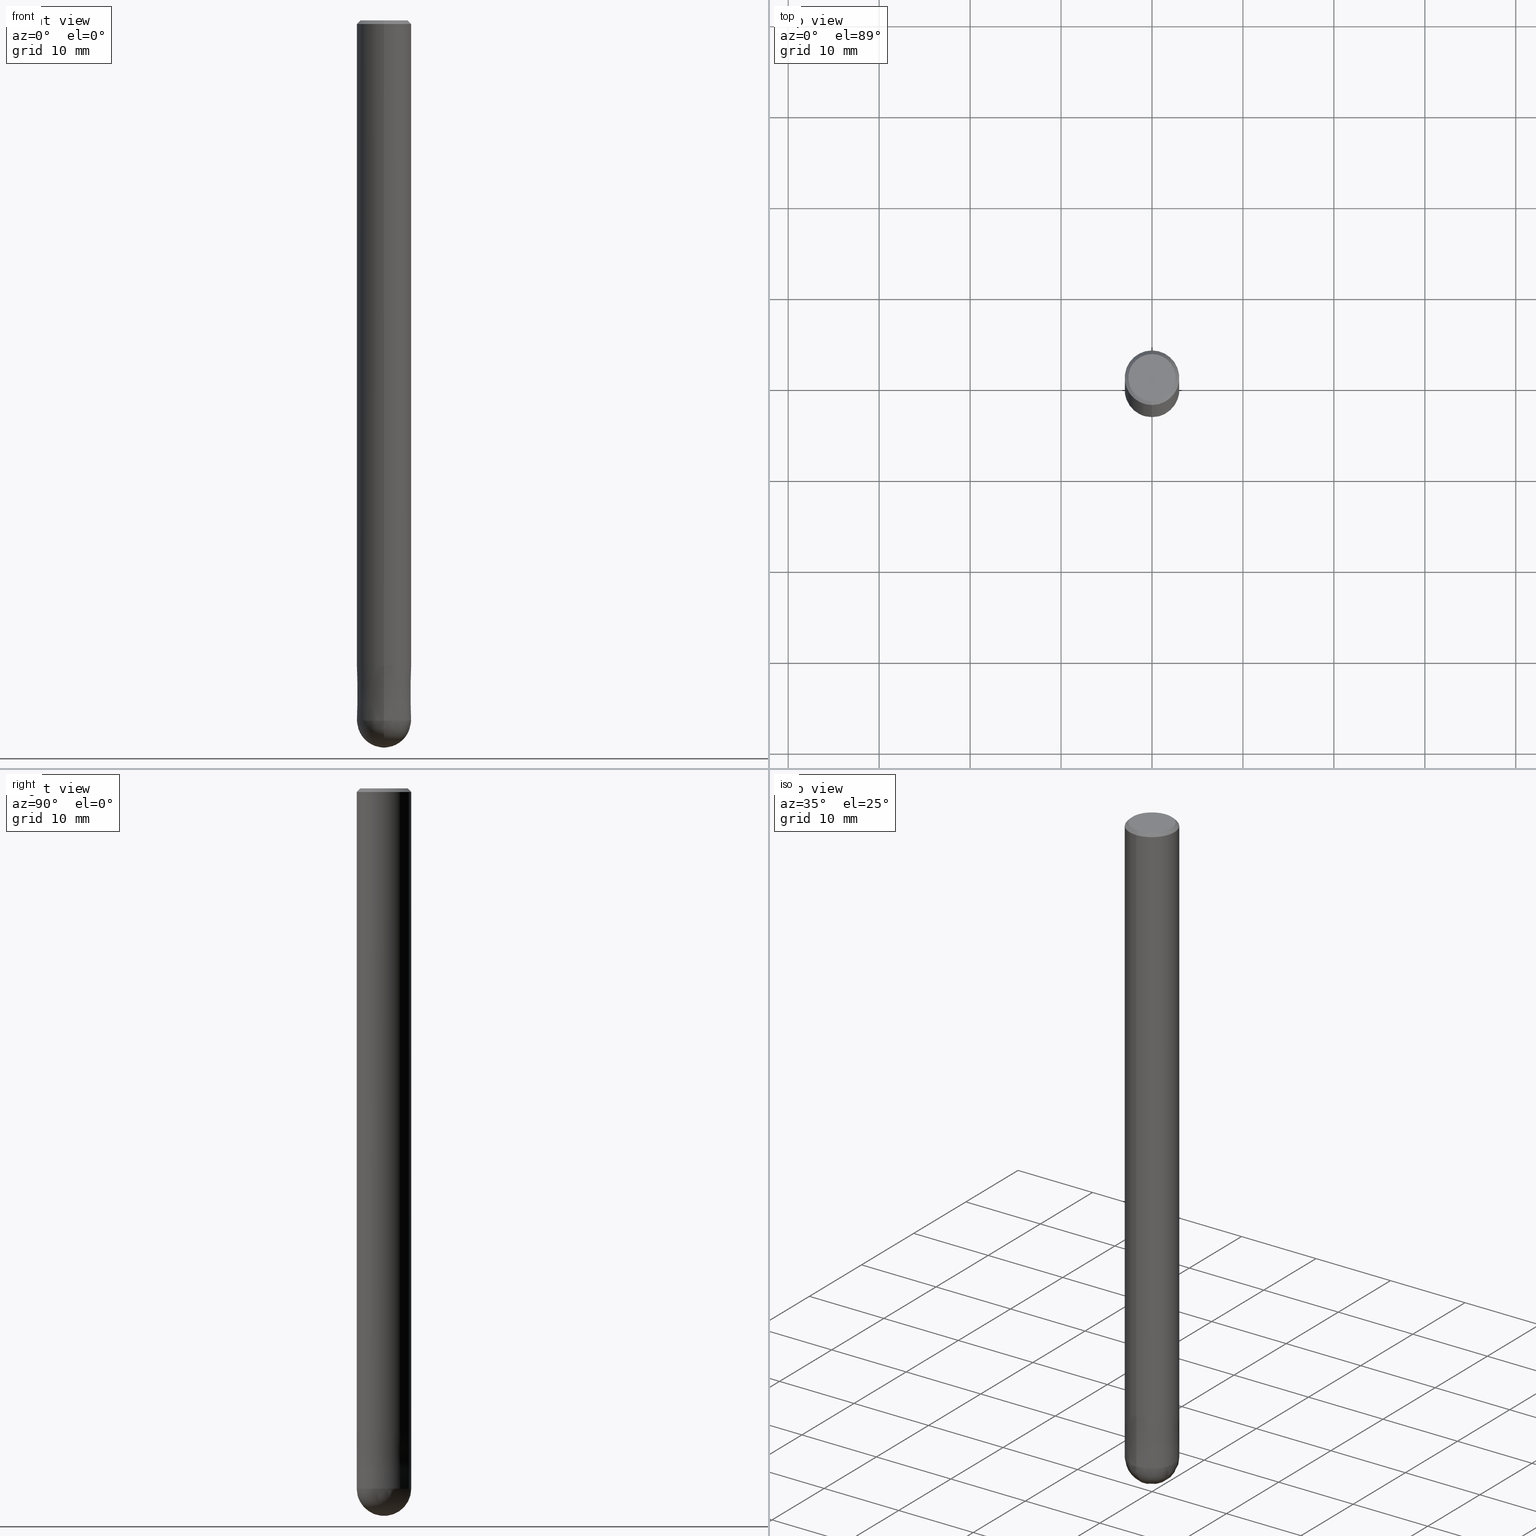
[diagram: canonical four-view strip — front | top / right | iso, engineering-drawing reading convention]
A machine part, canonical four-view strip (front | top / right | iso — engineering-drawing reading convention). The complete STEP part file that produces these views, byte-faithful:
ISO-10303-21;
HEADER;
FILE_DESCRIPTION(('no description'),'unknown implementation level');
FILE_NAME('CFB3060-0900-Huellk.stp','  ',('CIMSOURCE GmbH'),('CADClick - KiM GmbH - www.kimweb.de'),'unknown preprocess','ACIS','unknown authorization');
FILE_SCHEMA(('automotive_design'));
ENDSEC;
DATA;
#1=MECHANICAL_DESIGN_GEOMETRIC_PRESENTATION_REPRESENTATION(' ',(#10,#11,#12,#13,#14,#15,#16,#17,#18,#19,#20,#21,#22,#23,#24,#25,#26,#27,#28,#29,#30,#31,#32,#33,#34,#35,#36,#37,#38,#39,#40,#41,#42,#43,#44,#45,#46,#47),#6);
#2=PRODUCT_DEFINITION_CONTEXT('',#48,'design');
#3=APPLICATION_PROTOCOL_DEFINITION('INTERNATIONAL STANDARD','automotive_design',1994,#48);
#4=PRODUCT_CATEGORY_RELATIONSHIP('NONE','NONE',#49,#50);
#5=SHAPE_DEFINITION_REPRESENTATION(#51,#52);
#6= (GEOMETRIC_REPRESENTATION_CONTEXT(3)GLOBAL_UNCERTAINTY_ASSIGNED_CONTEXT((#55))GLOBAL_UNIT_ASSIGNED_CONTEXT((#57,#58,#59))REPRESENTATION_CONTEXT('NONE','WORKSPACE'));
#10=STYLED_ITEM('',(#61),#62);
#11=STYLED_ITEM('',(#63),#64);
#12=STYLED_ITEM('',(#65),#66);
#13=STYLED_ITEM('',(#67),#68);
#14=STYLED_ITEM('',(#69),#70);
#15=STYLED_ITEM('',(#71),#72);
#16=STYLED_ITEM('',(#73),#74);
#17=STYLED_ITEM('',(#75),#76);
#18=STYLED_ITEM('',(#77),#78);
#19=STYLED_ITEM('',(#79),#80);
#20=STYLED_ITEM('',(#81),#82);
#21=STYLED_ITEM('',(#83),#84);
#22=STYLED_ITEM('',(#85),#86);
#23=STYLED_ITEM('',(#87),#88);
#24=STYLED_ITEM('',(#89),#90);
#25=STYLED_ITEM('',(#91),#92);
#26=STYLED_ITEM('',(#93),#94);
#27=STYLED_ITEM('',(#95),#96);
#28=STYLED_ITEM('',(#97),#98);
#29=STYLED_ITEM('',(#99),#100);
#30=STYLED_ITEM('',(#101),#102);
#31=STYLED_ITEM('',(#103),#104);
#32=STYLED_ITEM('',(#105),#106);
#33=STYLED_ITEM('',(#107),#108);
#34=STYLED_ITEM('',(#109),#110);
#35=STYLED_ITEM('',(#111),#112);
#36=STYLED_ITEM('',(#113),#114);
#37=STYLED_ITEM('',(#115),#116);
#38=STYLED_ITEM('',(#117),#118);
#39=STYLED_ITEM('',(#119),#120);
#40=STYLED_ITEM('',(#121),#122);
#41=STYLED_ITEM('',(#123),#124);
#42=STYLED_ITEM('',(#125),#126);
#43=STYLED_ITEM('',(#127),#128);
#44=STYLED_ITEM('',(#129),#130);
#45=STYLED_ITEM('',(#131),#132);
#46=STYLED_ITEM('',(#133),#134);
#47=STYLED_ITEM('',(#135),#136);
#48=APPLICATION_CONTEXT(' ');
#49=PRODUCT_CATEGORY('part','NONE');
#50=PRODUCT_RELATED_PRODUCT_CATEGORY('detail',' ',(#137));
#51=PRODUCT_DEFINITION_SHAPE('NONE','NONE',#138);
#52=ADVANCED_BREP_SHAPE_REPRESENTATION('1',(#132,#139),#6);
#55=UNCERTAINTY_MEASURE_WITH_UNIT(LENGTH_MEASURE(1.0E-006),#57,'','');
#57= (CONVERSION_BASED_UNIT('MILLIMETRE',#142)LENGTH_UNIT()NAMED_UNIT(#145));
#58= (NAMED_UNIT(#147)PLANE_ANGLE_UNIT()SI_UNIT($,.RADIAN.));
#59= (NAMED_UNIT(#147)SOLID_ANGLE_UNIT()SI_UNIT($,.STERADIAN.));
#61=PRESENTATION_STYLE_ASSIGNMENT((#153));
#62=VERTEX_POINT('',#154);
#63=PRESENTATION_STYLE_ASSIGNMENT((#155));
#64=VERTEX_POINT('',#156);
#65=PRESENTATION_STYLE_ASSIGNMENT((#157));
#66=VERTEX_POINT('',#158);
#67=PRESENTATION_STYLE_ASSIGNMENT((#159));
#68=VERTEX_POINT('',#160);
#69=PRESENTATION_STYLE_ASSIGNMENT((#161));
#70=VERTEX_POINT('',#162);
#71=PRESENTATION_STYLE_ASSIGNMENT((#163));
#72=EDGE_CURVE('',#128,#68,#164,.T.);
#73=PRESENTATION_STYLE_ASSIGNMENT((#165));
#74=ADVANCED_FACE('',(#166),#167,.T.);
#75=PRESENTATION_STYLE_ASSIGNMENT((#168));
#76=EDGE_CURVE('',#136,#64,#169,.T.);
#77=PRESENTATION_STYLE_ASSIGNMENT((#170));
#78=EDGE_CURVE('',#70,#120,#171,.T.);
#79=PRESENTATION_STYLE_ASSIGNMENT((#172));
#80=ADVANCED_FACE('',(#173),#174,.T.);
#81=PRESENTATION_STYLE_ASSIGNMENT((#175));
#82=ADVANCED_FACE('',(#176),#177,.T.);
#83=PRESENTATION_STYLE_ASSIGNMENT((#178));
#84=VERTEX_POINT('',#179);
#85=PRESENTATION_STYLE_ASSIGNMENT((#180));
#86=EDGE_CURVE('',#66,#62,#181,.T.);
#87=PRESENTATION_STYLE_ASSIGNMENT((#182));
#88=ADVANCED_FACE('',(#183),#184,.T.);
#89=PRESENTATION_STYLE_ASSIGNMENT((#185));
#90=EDGE_CURVE('',#68,#128,#186,.T.);
#91=PRESENTATION_STYLE_ASSIGNMENT((#187));
#92=EDGE_CURVE('',#120,#70,#188,.T.);
#93=PRESENTATION_STYLE_ASSIGNMENT((#189));
#94=EDGE_CURVE('',#68,#62,#190,.T.);
#95=PRESENTATION_STYLE_ASSIGNMENT((#191));
#96=EDGE_CURVE('',#84,#124,#192,.T.);
#97=PRESENTATION_STYLE_ASSIGNMENT((#193));
#98=ADVANCED_FACE('',(#194),#195,.T.);
#99=PRESENTATION_STYLE_ASSIGNMENT((#196));
#100=ADVANCED_FACE('',(#197),#198,.T.);
#101=PRESENTATION_STYLE_ASSIGNMENT((#199));
#102=EDGE_CURVE('',#64,#84,#200,.T.);
#103=PRESENTATION_STYLE_ASSIGNMENT((#201));
#104=EDGE_CURVE('',#124,#84,#202,.T.);
#105=PRESENTATION_STYLE_ASSIGNMENT((#203));
#106=ADVANCED_FACE('',(#204),#205,.T.);
#107=PRESENTATION_STYLE_ASSIGNMENT((#206));
#108=EDGE_CURVE('',#120,#68,#207,.T.);
#109=PRESENTATION_STYLE_ASSIGNMENT((#208));
#110=ADVANCED_FACE('',(#209,#210),#211,.T.);
#111=PRESENTATION_STYLE_ASSIGNMENT((#212));
#112=EDGE_CURVE('',#64,#136,#213,.T.);
#113=PRESENTATION_STYLE_ASSIGNMENT((#214));
#114=EDGE_CURVE('',#66,#128,#215,.T.);
#115=PRESENTATION_STYLE_ASSIGNMENT((#216));
#116=ADVANCED_FACE('',(#217),#218,.T.);
#117=PRESENTATION_STYLE_ASSIGNMENT((#219));
#118=EDGE_CURVE('',#124,#84,#220,.T.);
#119=PRESENTATION_STYLE_ASSIGNMENT((#221));
#120=VERTEX_POINT('',#222);
#121=PRESENTATION_STYLE_ASSIGNMENT((#223));
#122=ADVANCED_FACE('',(#224),#225,.T.);
#123=PRESENTATION_STYLE_ASSIGNMENT((#226));
#124=VERTEX_POINT('',#227);
#125=PRESENTATION_STYLE_ASSIGNMENT((#228));
#126=EDGE_CURVE('',#128,#70,#229,.T.);
#127=PRESENTATION_STYLE_ASSIGNMENT((#230));
#128=VERTEX_POINT('',#231);
#129=PRESENTATION_STYLE_ASSIGNMENT((#232));
#130=EDGE_CURVE('',#62,#66,#233,.T.);
#131=PRESENTATION_STYLE_ASSIGNMENT((#234));
#132=MANIFOLD_SOLID_BREP('1',#235);
#133=PRESENTATION_STYLE_ASSIGNMENT((#236));
#134=EDGE_CURVE('',#124,#136,#237,.T.);
#135=PRESENTATION_STYLE_ASSIGNMENT((#238));
#136=VERTEX_POINT('',#239);
#137=PRODUCT('1','1','PART-1-DESC',(#240));
#138=PRODUCT_DEFINITION('NONE','NONE',#241,#2);
#139=AXIS2_PLACEMENT_3D('',#242,#243,#244);
#142=LENGTH_MEASURE_WITH_UNIT(LENGTH_MEASURE(1.0),#245);
#145=DIMENSIONAL_EXPONENTS(1.0,0.0,0.0,0.0,0.0,0.0,0.0);
#147=DIMENSIONAL_EXPONENTS(0.0,0.0,0.0,0.0,0.0,0.0,0.0);
#153=POINT_STYLE(' ',#246,POSITIVE_LENGTH_MEASURE(1.0E-006),#247);
#154=CARTESIAN_POINT('',(0.0,3.0,-71.0));
#155=POINT_STYLE(' ',#248,POSITIVE_LENGTH_MEASURE(1.0E-006),#249);
#156=CARTESIAN_POINT('',(0.0,2.9999,-71.0));
#157=POINT_STYLE(' ',#250,POSITIVE_LENGTH_MEASURE(1.0E-006),#251);
#158=CARTESIAN_POINT('',(3.67381906146713E-016,-3.0,-71.0));
#159=POINT_STYLE(' ',#252,POSITIVE_LENGTH_MEASURE(1.0E-006),#253);
#160=CARTESIAN_POINT('',(0.0,3.0,-0.400000000000006));
#161=POINT_STYLE(' ',#254,POSITIVE_LENGTH_MEASURE(1.0E-006),#255);
#162=CARTESIAN_POINT('',(3.18397651993818E-016,-2.6,0.0));
#163=CURVE_STYLE('',#256,POSITIVE_LENGTH_MEASURE(1.0E-006),#257);
#164=CIRCLE('',#258,3.0);
#165=SURFACE_STYLE_USAGE(.BOTH.,#259);
#166=FACE_OUTER_BOUND('',#260,.T.);
#167=PLANE('',#261);
#168=CURVE_STYLE('',#262,POSITIVE_LENGTH_MEASURE(1.0E-006),#263);
#169=CIRCLE('',#264,2.9999);
#170=CURVE_STYLE('',#265,POSITIVE_LENGTH_MEASURE(1.0E-006),#266);
#171=CIRCLE('',#267,2.6);
#172=SURFACE_STYLE_USAGE(.BOTH.,#268);
#173=FACE_OUTER_BOUND('',#269,.T.);
#174=CONICAL_SURFACE('',#270,2.99995,1.66666666652326E-005);
#175=SURFACE_STYLE_USAGE(.BOTH.,#271);
#176=FACE_OUTER_BOUND('',#272,.T.);
#177=CYLINDRICAL_SURFACE('',#273,3.0);
#178=POINT_STYLE(' ',#274,POSITIVE_LENGTH_MEASURE(1.0E-006),#275);
#179=CARTESIAN_POINT('',(0.0,3.0,-77.0));
#180=CURVE_STYLE('',#276,POSITIVE_LENGTH_MEASURE(1.0E-006),#277);
#181=CIRCLE('',#278,3.0);
#182=SURFACE_STYLE_USAGE(.BOTH.,#279);
#183=FACE_OUTER_BOUND('',#280,.T.);
#184=CONICAL_SURFACE('',#281,2.8,0.785398163397441);
#185=CURVE_STYLE('',#282,POSITIVE_LENGTH_MEASURE(1.0E-006),#283);
#186=CIRCLE('',#284,3.0);
#187=CURVE_STYLE('',#285,POSITIVE_LENGTH_MEASURE(1.0E-006),#286);
#188=CIRCLE('',#287,2.6);
#189=CURVE_STYLE('',#288,POSITIVE_LENGTH_MEASURE(1.0E-006),#289);
#190=LINE('',#290,#291);
#191=CURVE_STYLE('',#292,POSITIVE_LENGTH_MEASURE(1.0E-006),#293);
#192=CIRCLE('',#294,3.0);
#193=SURFACE_STYLE_USAGE(.BOTH.,#295);
#194=FACE_OUTER_BOUND('',#296,.T.);
#195=CONICAL_SURFACE('',#297,2.8,0.785398163397441);
#196=SURFACE_STYLE_USAGE(.BOTH.,#298);
#197=FACE_OUTER_BOUND('',#299,.T.);
#198=SPHERICAL_SURFACE('',#300,3.00000000000001);
#199=CURVE_STYLE('',#301,POSITIVE_LENGTH_MEASURE(1.0E-006),#302);
#200=LINE('',#303,#304);
#201=CURVE_STYLE('',#305,POSITIVE_LENGTH_MEASURE(1.0E-006),#306);
#202=CIRCLE('',#307,3.00000000000001);
#203=SURFACE_STYLE_USAGE(.BOTH.,#308);
#204=FACE_OUTER_BOUND('',#309,.T.);
#205=CONICAL_SURFACE('',#310,2.99995,1.66666666652326E-005);
#206=CURVE_STYLE('',#311,POSITIVE_LENGTH_MEASURE(1.0E-006),#312);
#207=LINE('',#313,#314);
#208=SURFACE_STYLE_USAGE(.BOTH.,#315);
#209=FACE_OUTER_BOUND('',#316,.T.);
#210=FACE_BOUND('',#317,.T.);
#211=PLANE('',#318);
#212=CURVE_STYLE('',#319,POSITIVE_LENGTH_MEASURE(1.0E-006),#320);
#213=CIRCLE('',#321,2.9999);
#214=CURVE_STYLE('',#322,POSITIVE_LENGTH_MEASURE(1.0E-006),#323);
#215=LINE('',#324,#325);
#216=SURFACE_STYLE_USAGE(.BOTH.,#326);
#217=FACE_OUTER_BOUND('',#327,.T.);
#218=SPHERICAL_SURFACE('',#328,3.00000000000001);
#219=CURVE_STYLE('',#329,POSITIVE_LENGTH_MEASURE(1.0E-006),#330);
#220=CIRCLE('',#331,3.0);
#221=POINT_STYLE(' ',#332,POSITIVE_LENGTH_MEASURE(1.0E-006),#333);
#222=CARTESIAN_POINT('',(0.0,2.6,0.0));
#223=SURFACE_STYLE_USAGE(.BOTH.,#334);
#224=FACE_OUTER_BOUND('',#335,.T.);
#225=CYLINDRICAL_SURFACE('',#336,3.0);
#226=POINT_STYLE(' ',#337,POSITIVE_LENGTH_MEASURE(1.0E-006),#338);
#227=CARTESIAN_POINT('',(3.67381906146713E-016,-3.0,-77.0));
#228=CURVE_STYLE('',#339,POSITIVE_LENGTH_MEASURE(1.0E-006),#340);
#229=LINE('',#341,#342);
#230=POINT_STYLE(' ',#343,POSITIVE_LENGTH_MEASURE(1.0E-006),#344);
#231=CARTESIAN_POINT('',(3.67381906146713E-016,-3.0,-0.400000000000006));
#232=CURVE_STYLE('',#345,POSITIVE_LENGTH_MEASURE(1.0E-006),#346);
#233=CIRCLE('',#347,3.0);
#234=SURFACE_STYLE_USAGE(.BOTH.,#348);
#235=CLOSED_SHELL('',(#100,#80,#122,#98,#110,#74,#88,#82,#106,#116));
#236=CURVE_STYLE('',#349,POSITIVE_LENGTH_MEASURE(1.0E-006),#350);
#237=LINE('',#351,#352);
#238=POINT_STYLE(' ',#353,POSITIVE_LENGTH_MEASURE(1.0E-006),#354);
#239=CARTESIAN_POINT('',(3.67369660083175E-016,-2.9999,-71.0));
#240=PRODUCT_CONTEXT('',#48,'mechanical');
#241=PRODUCT_DEFINITION_FORMATION_WITH_SPECIFIED_SOURCE(' ','NONE',#137,.NOT_KNOWN.);
#242=CARTESIAN_POINT('',(0.0,0.0,0.0));
#243=DIRECTION('',(0.0,0.0,1.0));
#244=DIRECTION('',(1.0,0.0,0.0));
#245= (NAMED_UNIT(#145)LENGTH_UNIT()SI_UNIT(.MILLI.,.METRE.));
#246=PRE_DEFINED_MARKER('');
#247=COLOUR_RGB('',0.498039215803146,0.498039215803146,0.498039215803146);
#248=PRE_DEFINED_MARKER('');
#249=COLOUR_RGB('',0.800000011920929,0.800000011920929,0.800000011920929);
#250=PRE_DEFINED_MARKER('');
#251=COLOUR_RGB('',0.498039215803146,0.498039215803146,0.498039215803146);
#252=PRE_DEFINED_MARKER('');
#253=COLOUR_RGB('',0.498039215803146,0.498039215803146,0.498039215803146);
#254=PRE_DEFINED_MARKER('');
#255=COLOUR_RGB('',0.498039215803146,0.498039215803146,0.498039215803146);
#256=DRAUGHTING_PRE_DEFINED_CURVE_FONT('continuous');
#257=COLOUR_RGB('',0.498039215803146,0.498039215803146,0.498039215803146);
#258=AXIS2_PLACEMENT_3D('',#356,#357,#358);
#259=SURFACE_SIDE_STYLE('',(#359));
#260=EDGE_LOOP('',(#360,#361));
#261=AXIS2_PLACEMENT_3D('',#362,#363,#364);
#262=DRAUGHTING_PRE_DEFINED_CURVE_FONT('continuous');
#263=COLOUR_RGB('',0.800000011920929,0.800000011920929,0.800000011920929);
#264=AXIS2_PLACEMENT_3D('',#365,#366,#367);
#265=DRAUGHTING_PRE_DEFINED_CURVE_FONT('continuous');
#266=COLOUR_RGB('',0.498039215803146,0.498039215803146,0.498039215803146);
#267=AXIS2_PLACEMENT_3D('',#368,#369,#370);
#268=SURFACE_SIDE_STYLE('',(#371));
#269=EDGE_LOOP('',(#372,#373,#374,#375));
#270=AXIS2_PLACEMENT_3D('',#376,#377,#378);
#271=SURFACE_SIDE_STYLE('',(#379));
#272=EDGE_LOOP('',(#380,#381,#382,#383));
#273=AXIS2_PLACEMENT_3D('',#384,#385,#386);
#274=PRE_DEFINED_MARKER('');
#275=COLOUR_RGB('',0.800000011920929,0.800000011920929,0.800000011920929);
#276=DRAUGHTING_PRE_DEFINED_CURVE_FONT('continuous');
#277=COLOUR_RGB('',0.498039215803146,0.498039215803146,0.498039215803146);
#278=AXIS2_PLACEMENT_3D('',#387,#388,#389);
#279=SURFACE_SIDE_STYLE('',(#390));
#280=EDGE_LOOP('',(#391,#392,#393,#394));
#281=AXIS2_PLACEMENT_3D('',#395,#396,#397);
#282=DRAUGHTING_PRE_DEFINED_CURVE_FONT('continuous');
#283=COLOUR_RGB('',0.498039215803146,0.498039215803146,0.498039215803146);
#284=AXIS2_PLACEMENT_3D('',#398,#399,#400);
#285=DRAUGHTING_PRE_DEFINED_CURVE_FONT('continuous');
#286=COLOUR_RGB('',0.498039215803146,0.498039215803146,0.498039215803146);
#287=AXIS2_PLACEMENT_3D('',#401,#402,#403);
#288=DRAUGHTING_PRE_DEFINED_CURVE_FONT('continuous');
#289=COLOUR_RGB('',0.498039215803146,0.498039215803146,0.498039215803146);
#290=CARTESIAN_POINT('',(-3.67381906146713E-016,3.0,-35.7));
#291=VECTOR('',#404,1.0);
#292=DRAUGHTING_PRE_DEFINED_CURVE_FONT('continuous');
#293=COLOUR_RGB('',0.800000011920929,0.800000011920929,0.800000011920929);
#294=AXIS2_PLACEMENT_3D('',#405,#406,#407);
#295=SURFACE_SIDE_STYLE('',(#408));
#296=EDGE_LOOP('',(#409,#410,#411,#412));
#297=AXIS2_PLACEMENT_3D('',#413,#414,#415);
#298=SURFACE_SIDE_STYLE('',(#416));
#299=EDGE_LOOP('',(#417,#418));
#300=AXIS2_PLACEMENT_3D('',#419,#420,#421);
#301=DRAUGHTING_PRE_DEFINED_CURVE_FONT('continuous');
#302=COLOUR_RGB('',0.800000011920929,0.800000011920929,0.800000011920929);
#303=CARTESIAN_POINT('',(-3.67375783114944E-016,2.99995,-74.0));
#304=VECTOR('',#422,1.0);
#305=DRAUGHTING_PRE_DEFINED_CURVE_FONT('continuous');
#306=COLOUR_RGB('',0.800000011920929,0.800000011920929,0.800000011920929);
#307=AXIS2_PLACEMENT_3D('',#423,#424,#425);
#308=SURFACE_SIDE_STYLE('',(#426));
#309=EDGE_LOOP('',(#427,#428,#429,#430));
#310=AXIS2_PLACEMENT_3D('',#431,#432,#433);
#311=DRAUGHTING_PRE_DEFINED_CURVE_FONT('continuous');
#312=COLOUR_RGB('',0.498039215803146,0.498039215803146,0.498039215803146);
#313=CARTESIAN_POINT('',(-3.42889779070266E-016,2.8,-0.200000000000003));
#314=VECTOR('',#434,1.0);
#315=SURFACE_SIDE_STYLE('',(#435));
#316=EDGE_LOOP('',(#436,#437));
#317=EDGE_LOOP('',(#438,#439));
#318=AXIS2_PLACEMENT_3D('',#440,#441,#442);
#319=DRAUGHTING_PRE_DEFINED_CURVE_FONT('continuous');
#320=COLOUR_RGB('',0.800000011920929,0.800000011920929,0.800000011920929);
#321=AXIS2_PLACEMENT_3D('',#443,#444,#445);
#322=DRAUGHTING_PRE_DEFINED_CURVE_FONT('continuous');
#323=COLOUR_RGB('',0.498039215803146,0.498039215803146,0.498039215803146);
#324=CARTESIAN_POINT('',(3.67381906146713E-016,-3.0,-35.7));
#325=VECTOR('',#446,1.0);
#326=SURFACE_SIDE_STYLE('',(#447));
#327=EDGE_LOOP('',(#448,#449));
#328=AXIS2_PLACEMENT_3D('',#450,#451,#452);
#329=DRAUGHTING_PRE_DEFINED_CURVE_FONT('continuous');
#330=COLOUR_RGB('',0.800000011920929,0.800000011920929,0.800000011920929);
#331=AXIS2_PLACEMENT_3D('',#453,#454,#455);
#332=PRE_DEFINED_MARKER('');
#333=COLOUR_RGB('',0.498039215803146,0.498039215803146,0.498039215803146);
#334=SURFACE_SIDE_STYLE('',(#456));
#335=EDGE_LOOP('',(#457,#458,#459,#460));
#336=AXIS2_PLACEMENT_3D('',#461,#462,#463);
#337=PRE_DEFINED_MARKER('');
#338=COLOUR_RGB('',0.800000011920929,0.800000011920929,0.800000011920929);
#339=DRAUGHTING_PRE_DEFINED_CURVE_FONT('continuous');
#340=COLOUR_RGB('',0.498039215803146,0.498039215803146,0.498039215803146);
#341=CARTESIAN_POINT('',(3.42889779070266E-016,-2.8,-0.200000000000003));
#342=VECTOR('',#464,1.0);
#343=PRE_DEFINED_MARKER('');
#344=COLOUR_RGB('',0.498039215803146,0.498039215803146,0.498039215803146);
#345=DRAUGHTING_PRE_DEFINED_CURVE_FONT('continuous');
#346=COLOUR_RGB('',0.498039215803146,0.498039215803146,0.498039215803146);
#347=AXIS2_PLACEMENT_3D('',#465,#466,#467);
#348=SURFACE_SIDE_STYLE('',(#468));
#349=DRAUGHTING_PRE_DEFINED_CURVE_FONT('continuous');
#350=COLOUR_RGB('',0.800000011920929,0.800000011920929,0.800000011920929);
#351=CARTESIAN_POINT('',(3.67375783114944E-016,-2.99995,-74.0));
#352=VECTOR('',#469,1.0);
#353=PRE_DEFINED_MARKER('');
#354=COLOUR_RGB('',0.800000011920929,0.800000011920929,0.800000011920929);
#356=CARTESIAN_POINT('',(0.0,0.0,-0.400000000000006));
#357=DIRECTION('',(0.0,0.0,-1.0));
#358=DIRECTION('',(0.0,1.0,0.0));
#359=SURFACE_STYLE_FILL_AREA(#470);
#360=ORIENTED_EDGE('',*,*,#92,.F.);
#361=ORIENTED_EDGE('',*,*,#78,.F.);
#362=CARTESIAN_POINT('',(0.0,1.3,0.0));
#363=DIRECTION('',(-0.0,0.0,1.0));
#364=DIRECTION('',(0.0,-1.0,0.0));
#365=CARTESIAN_POINT('',(0.0,0.0,-71.0));
#366=DIRECTION('',(0.0,0.0,-1.0));
#367=DIRECTION('',(0.0,1.0,0.0));
#368=CARTESIAN_POINT('',(0.0,0.0,0.0));
#369=DIRECTION('',(0.0,0.0,-1.0));
#370=DIRECTION('',(0.0,1.0,0.0));
#371=SURFACE_STYLE_FILL_AREA(#471);
#372=ORIENTED_EDGE('',*,*,#102,.F.);
#373=ORIENTED_EDGE('',*,*,#112,.T.);
#374=ORIENTED_EDGE('',*,*,#134,.F.);
#375=ORIENTED_EDGE('',*,*,#96,.F.);
#376=CARTESIAN_POINT('',(0.0,0.0,-74.0));
#377=DIRECTION('',(0.0,-0.0,-1.0));
#378=DIRECTION('',(0.0,1.0,0.0));
#379=SURFACE_STYLE_FILL_AREA(#472);
#380=ORIENTED_EDGE('',*,*,#94,.T.);
#381=ORIENTED_EDGE('',*,*,#86,.F.);
#382=ORIENTED_EDGE('',*,*,#114,.T.);
#383=ORIENTED_EDGE('',*,*,#72,.T.);
#384=CARTESIAN_POINT('',(0.0,0.0,-35.7));
#385=DIRECTION('',(-0.0,-0.0,1.0));
#386=DIRECTION('',(0.0,1.0,0.0));
#387=CARTESIAN_POINT('',(0.0,0.0,-71.0));
#388=DIRECTION('',(0.0,0.0,-1.0));
#389=DIRECTION('',(0.0,1.0,0.0));
#390=SURFACE_STYLE_FILL_AREA(#473);
#391=ORIENTED_EDGE('',*,*,#108,.T.);
#392=ORIENTED_EDGE('',*,*,#72,.F.);
#393=ORIENTED_EDGE('',*,*,#126,.T.);
#394=ORIENTED_EDGE('',*,*,#78,.T.);
#395=CARTESIAN_POINT('',(0.0,0.0,-0.200000000000003));
#396=DIRECTION('',(0.0,-0.0,-1.0));
#397=DIRECTION('',(0.0,1.0,0.0));
#398=CARTESIAN_POINT('',(0.0,0.0,-0.400000000000006));
#399=DIRECTION('',(0.0,0.0,-1.0));
#400=DIRECTION('',(0.0,1.0,0.0));
#401=CARTESIAN_POINT('',(0.0,0.0,0.0));
#402=DIRECTION('',(0.0,0.0,-1.0));
#403=DIRECTION('',(0.0,1.0,0.0));
#404=DIRECTION('',(0.0,0.0,-1.0));
#405=CARTESIAN_POINT('',(0.0,0.0,-77.0));
#406=DIRECTION('',(0.0,0.0,-1.0));
#407=DIRECTION('',(0.0,1.0,0.0));
#408=SURFACE_STYLE_FILL_AREA(#474);
#409=ORIENTED_EDGE('',*,*,#108,.F.);
#410=ORIENTED_EDGE('',*,*,#92,.T.);
#411=ORIENTED_EDGE('',*,*,#126,.F.);
#412=ORIENTED_EDGE('',*,*,#90,.F.);
#413=CARTESIAN_POINT('',(0.0,0.0,-0.200000000000003));
#414=DIRECTION('',(0.0,-0.0,-1.0));
#415=DIRECTION('',(0.0,1.0,0.0));
#416=SURFACE_STYLE_FILL_AREA(#475);
#417=ORIENTED_EDGE('',*,*,#104,.F.);
#418=ORIENTED_EDGE('',*,*,#118,.T.);
#419=CARTESIAN_POINT('',(0.0,0.0,-77.0));
#420=DIRECTION('',(0.0,1.0,0.0));
#421=DIRECTION('',(0.0,0.0,-1.0));
#422=DIRECTION('',(-2.04101058943386E-021,1.6666666664461E-005,-0.999999999861111));
#423=CARTESIAN_POINT('',(0.0,0.0,-77.0));
#424=DIRECTION('',(1.0,0.0,1.22460635382238E-016));
#425=DIRECTION('',(-1.22460635382238E-016,0.0,1.0));
#426=SURFACE_STYLE_FILL_AREA(#476);
#427=ORIENTED_EDGE('',*,*,#102,.T.);
#428=ORIENTED_EDGE('',*,*,#118,.F.);
#429=ORIENTED_EDGE('',*,*,#134,.T.);
#430=ORIENTED_EDGE('',*,*,#76,.T.);
#431=CARTESIAN_POINT('',(0.0,0.0,-74.0));
#432=DIRECTION('',(0.0,-0.0,-1.0));
#433=DIRECTION('',(0.0,1.0,0.0));
#434=DIRECTION('',(-8.65927457071929E-017,0.707106781186542,-0.707106781186553));
#435=SURFACE_STYLE_FILL_AREA(#477);
#436=ORIENTED_EDGE('',*,*,#130,.T.);
#437=ORIENTED_EDGE('',*,*,#86,.T.);
#438=ORIENTED_EDGE('',*,*,#112,.F.);
#439=ORIENTED_EDGE('',*,*,#76,.F.);
#440=CARTESIAN_POINT('',(0.0,1.5,-71.0));
#441=DIRECTION('',(0.0,0.0,-1.0));
#442=DIRECTION('',(0.0,1.0,0.0));
#443=CARTESIAN_POINT('',(0.0,0.0,-71.0));
#444=DIRECTION('',(0.0,0.0,-1.0));
#445=DIRECTION('',(0.0,1.0,0.0));
#446=DIRECTION('',(-0.0,-0.0,1.0));
#447=SURFACE_STYLE_FILL_AREA(#478);
#448=ORIENTED_EDGE('',*,*,#104,.T.);
#449=ORIENTED_EDGE('',*,*,#96,.T.);
#450=CARTESIAN_POINT('',(0.0,0.0,-77.0));
#451=DIRECTION('',(0.0,1.0,0.0));
#452=DIRECTION('',(0.0,0.0,-1.0));
#453=CARTESIAN_POINT('',(0.0,0.0,-77.0));
#454=DIRECTION('',(0.0,0.0,-1.0));
#455=DIRECTION('',(0.0,1.0,0.0));
#456=SURFACE_STYLE_FILL_AREA(#479);
#457=ORIENTED_EDGE('',*,*,#94,.F.);
#458=ORIENTED_EDGE('',*,*,#90,.T.);
#459=ORIENTED_EDGE('',*,*,#114,.F.);
#460=ORIENTED_EDGE('',*,*,#130,.F.);
#461=CARTESIAN_POINT('',(0.0,0.0,-35.7));
#462=DIRECTION('',(-0.0,-0.0,1.0));
#463=DIRECTION('',(0.0,1.0,0.0));
#464=DIRECTION('',(-8.65927457071929E-017,0.707106781186542,0.707106781186553));
#465=CARTESIAN_POINT('',(0.0,0.0,-71.0));
#466=DIRECTION('',(0.0,0.0,-1.0));
#467=DIRECTION('',(0.0,1.0,0.0));
#468=SURFACE_STYLE_FILL_AREA(#480);
#469=DIRECTION('',(-2.04101058943386E-021,1.6666666664461E-005,0.999999999861111));
#470=FILL_AREA_STYLE('',(#481));
#471=FILL_AREA_STYLE('',(#482));
#472=FILL_AREA_STYLE('',(#483));
#473=FILL_AREA_STYLE('',(#484));
#474=FILL_AREA_STYLE('',(#485));
#475=FILL_AREA_STYLE('',(#486));
#476=FILL_AREA_STYLE('',(#487));
#477=FILL_AREA_STYLE('',(#488));
#478=FILL_AREA_STYLE('',(#489));
#479=FILL_AREA_STYLE('',(#490));
#480=FILL_AREA_STYLE('',(#491));
#481=FILL_AREA_STYLE_COLOUR('',#492);
#482=FILL_AREA_STYLE_COLOUR('',#493);
#483=FILL_AREA_STYLE_COLOUR('',#494);
#484=FILL_AREA_STYLE_COLOUR('',#495);
#485=FILL_AREA_STYLE_COLOUR('',#496);
#486=FILL_AREA_STYLE_COLOUR('',#497);
#487=FILL_AREA_STYLE_COLOUR('',#498);
#488=FILL_AREA_STYLE_COLOUR('',#499);
#489=FILL_AREA_STYLE_COLOUR('',#500);
#490=FILL_AREA_STYLE_COLOUR('',#501);
#491=FILL_AREA_STYLE_COLOUR('',#502);
#492=COLOUR_RGB('',0.498039215803146,0.498039215803146,0.498039215803146);
#493=COLOUR_RGB('',0.800000011920929,0.800000011920929,0.800000011920929);
#494=COLOUR_RGB('',0.498039215803146,0.498039215803146,0.498039215803146);
#495=COLOUR_RGB('',0.498039215803146,0.498039215803146,0.498039215803146);
#496=COLOUR_RGB('',0.498039215803146,0.498039215803146,0.498039215803146);
#497=COLOUR_RGB('',0.800000011920929,0.800000011920929,0.800000011920929);
#498=COLOUR_RGB('',0.800000011920929,0.800000011920929,0.800000011920929);
#499=COLOUR_RGB('',0.498039215803146,0.498039215803146,0.498039215803146);
#500=COLOUR_RGB('',0.800000011920929,0.800000011920929,0.800000011920929);
#501=COLOUR_RGB('',0.498039215803146,0.498039215803146,0.498039215803146);
#502=COLOUR_RGB('',0.800000011920929,0.800000011920929,0.800000011920929);
#503=AXIS2_PLACEMENT_3D('PCS',#504,#505,#506);
#504=CARTESIAN_POINT('',(0.0,0.0,0.0));
#505=DIRECTION('',(0.0,0.0,1.0));
#506=DIRECTION('',(1.0,0.0,0.0));
#507=AXIS2_PLACEMENT_3D('CIP',#508,#509,#510);
#508=CARTESIAN_POINT('',(0.0,0.0,-80.0));
#509=DIRECTION('',(0.0,0.0,1.0));
#510=DIRECTION('',(1.0,0.0,0.0));
#511=AXIS2_PLACEMENT_3D('CRP',#512,#513,#514);
#512=CARTESIAN_POINT('',(-3.0,0.0,-80.0));
#513=DIRECTION('',(0.0,0.0,1.0));
#514=DIRECTION('',(1.0,0.0,0.0));
#515=AXIS2_PLACEMENT_3D('MCS',#516,#517,#518);
#516=CARTESIAN_POINT('',(0.0,0.0,-71.0));
#517=DIRECTION('',(0.0,0.0,1.0));
#518=DIRECTION('',(1.0,0.0,0.0));
#519=CONSTRUCTIVE_GEOMETRY_REPRESENTATION_RELATIONSHIP('coordinate systems',$,#52,#520);
#520=CONSTRUCTIVE_GEOMETRY_REPRESENTATION('coordinate systems',(#503,#507,#511,#515),#6);
ENDSEC;
END-ISO-10303-21;
